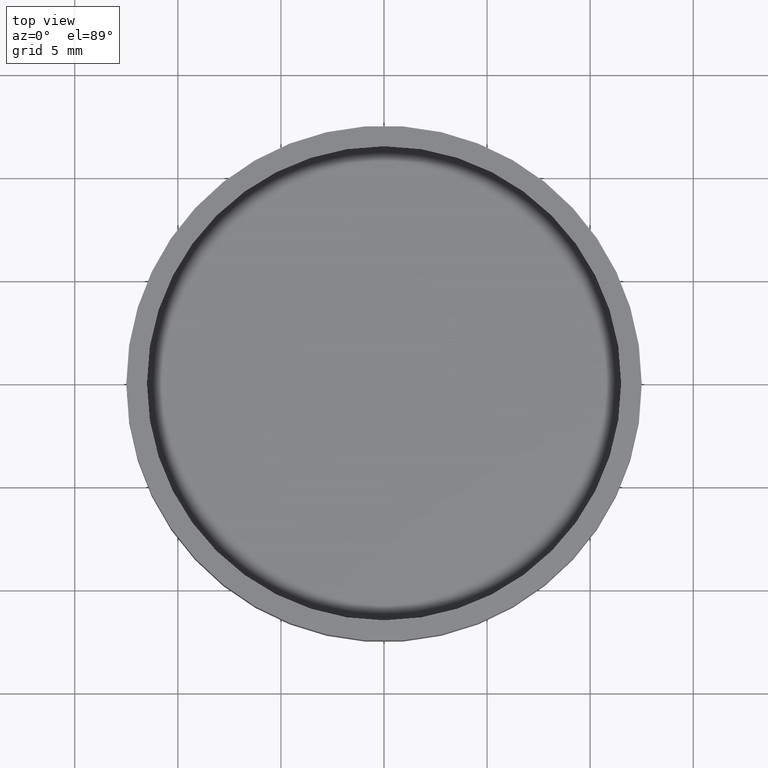
[diagram: clean part render]
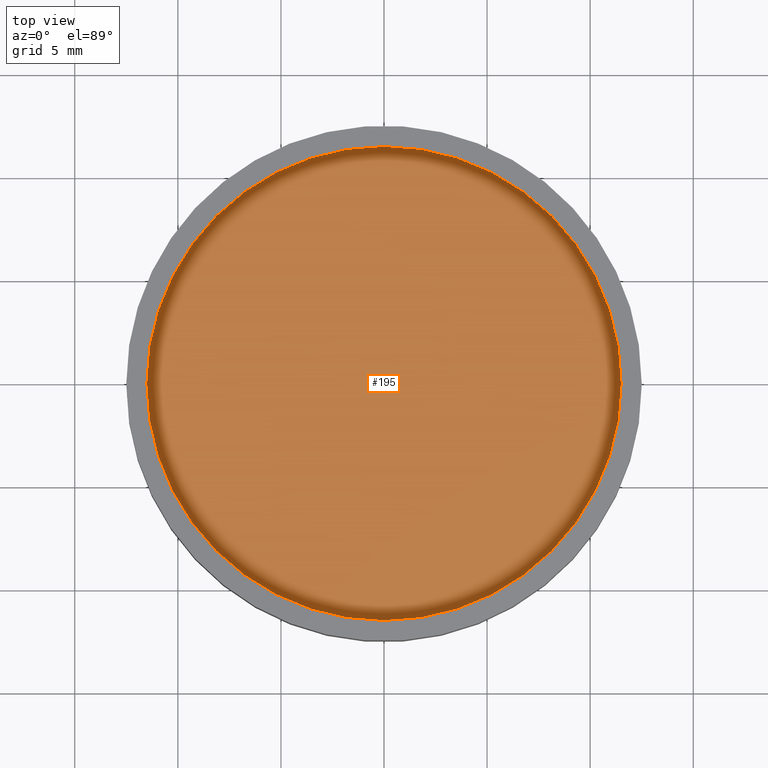
[diagram: same view with one face highlighted and labeled with its STEP entity id]
A machine part, top view. The second image highlights one B-rep face of the part: STEP entity #195.
In plain terms, the highlighted planar face has unit normal (0, 0, 1).
Its self-contained STEP definition (entity closure, byte-faithful):
#5 = EDGE_LOOP ( 'NONE', ( #396, #56 ) ) ;
#27 = DIRECTION ( 'NONE',  ( 0.000000000000000000, 0.000000000000000000, 1.000000000000000000 ) ) ;
#35 = VERTEX_POINT ( 'NONE', #75 ) ;
#36 = DIRECTION ( 'NONE',  ( 1.000000000000000000, 0.000000000000000000, -0.000000000000000000 ) ) ;
#51 = EDGE_CURVE ( 'NONE', #35, #282, #297, .T. ) ;
#56 = ORIENTED_EDGE ( 'NONE', *, *, #328, .T. ) ;
#75 = CARTESIAN_POINT ( 'NONE',  ( 11.50000000000000000, 0.000000000000000000, 2.750000000000000000 ) ) ;
#120 = CARTESIAN_POINT ( 'NONE',  ( 0.000000000000000000, 0.000000000000000000, 2.750000000000000000 ) ) ;
#131 = CIRCLE ( 'NONE', #366, 11.50000000000000000 ) ;
#150 = DIRECTION ( 'NONE',  ( 1.000000000000000000, 0.000000000000000000, 0.000000000000000000 ) ) ;
#179 = CARTESIAN_POINT ( 'NONE',  ( 0.000000000000000000, 0.000000000000000000, 2.750000000000000000 ) ) ;
#188 = PLANE ( 'NONE',  #377 ) ;
#195 = ADVANCED_FACE ( 'NONE', ( #323 ), #188, .T. ) ;
#207 = DIRECTION ( 'NONE',  ( 0.000000000000000000, 0.000000000000000000, 1.000000000000000000 ) ) ;
#250 = CARTESIAN_POINT ( 'NONE',  ( 0.000000000000000000, 0.000000000000000000, 2.750000000000000000 ) ) ;
#261 = CARTESIAN_POINT ( 'NONE',  ( -11.50000000000000000, 1.408343819019456176E-15, 2.750000000000000000 ) ) ;
#282 = VERTEX_POINT ( 'NONE', #261 ) ;
#297 = CIRCLE ( 'NONE', #305, 11.50000000000000000 ) ;
#303 = DIRECTION ( 'NONE',  ( 1.000000000000000000, 0.000000000000000000, 0.000000000000000000 ) ) ;
#305 = AXIS2_PLACEMENT_3D ( 'NONE', #179, #397, #303 ) ;
#323 = FACE_OUTER_BOUND ( 'NONE', #5, .T. ) ;
#328 = EDGE_CURVE ( 'NONE', #282, #35, #131, .T. ) ;
#366 = AXIS2_PLACEMENT_3D ( 'NONE', #250, #207, #150 ) ;
#377 = AXIS2_PLACEMENT_3D ( 'NONE', #120, #27, #36 ) ;
#396 = ORIENTED_EDGE ( 'NONE', *, *, #51, .T. ) ;
#397 = DIRECTION ( 'NONE',  ( 0.000000000000000000, 0.000000000000000000, 1.000000000000000000 ) ) ;